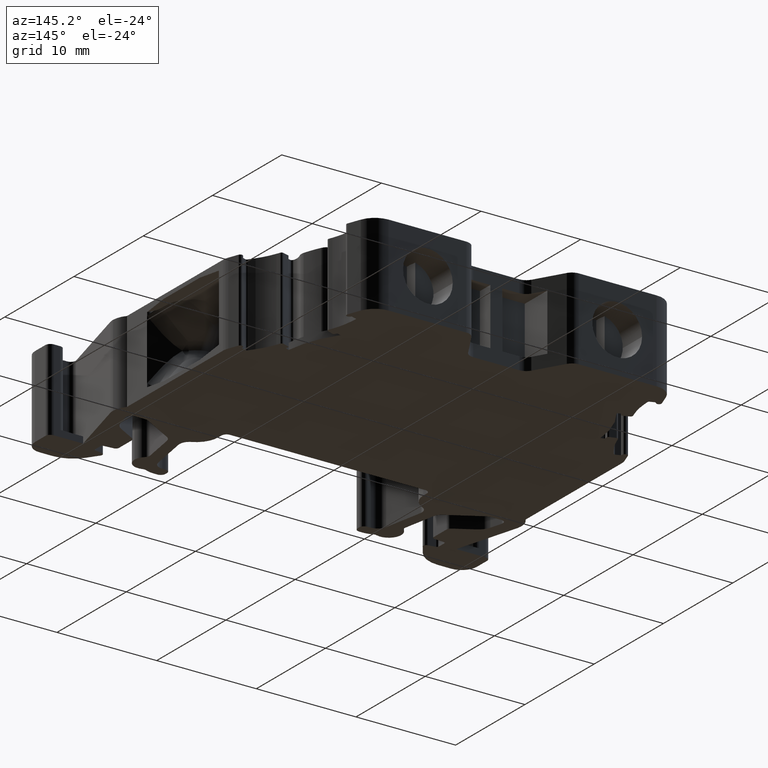
[diagram: clean part render]
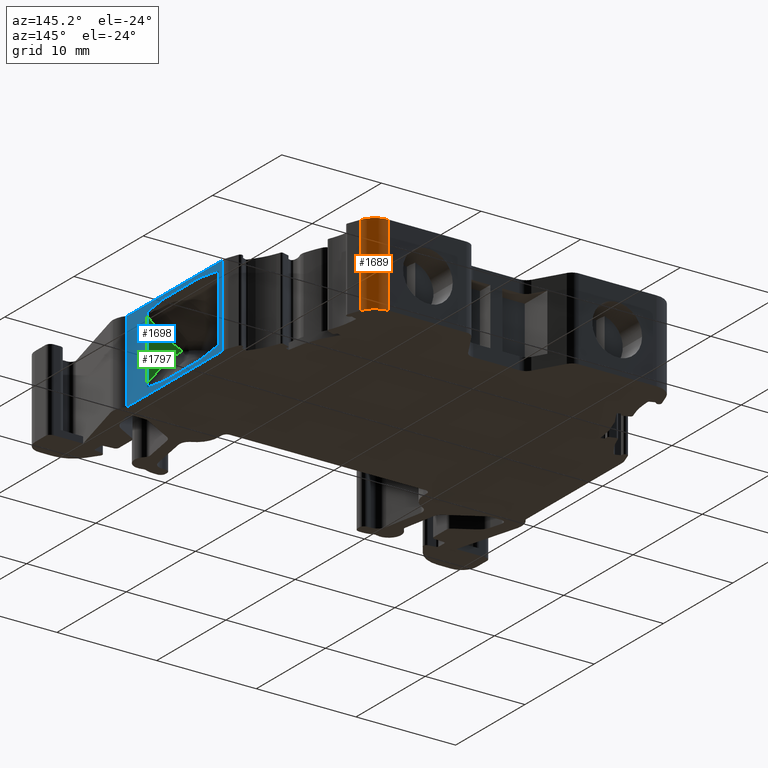
[diagram: same view with three faces highlighted in distinct colors, each labeled with its STEP entity id]
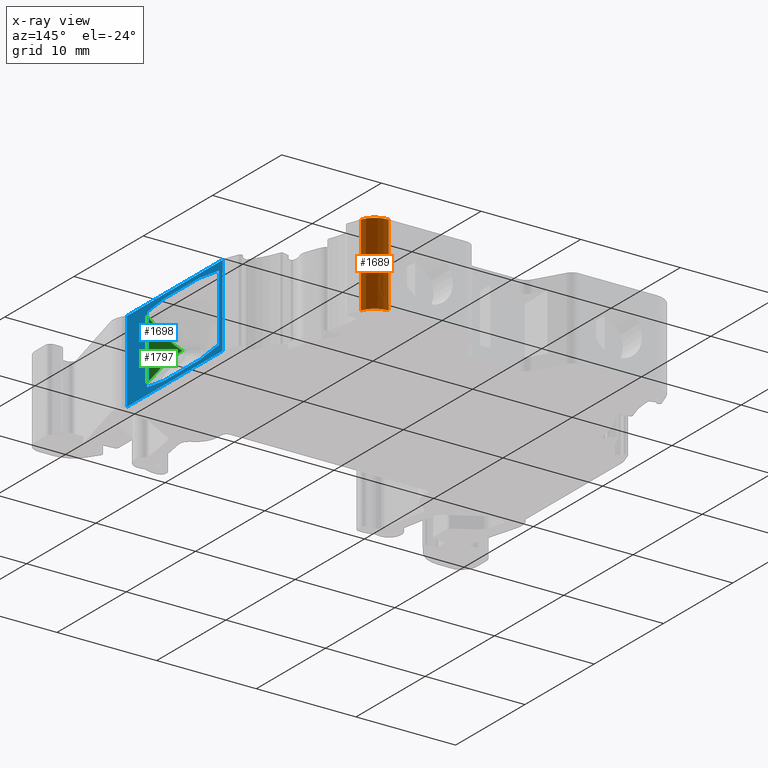
[diagram: x-ray of the same camera — body ghosted, the three highlighted faces saturated]
A machine part, auxiliary view with three faces highlighted in distinct colors.
The next image is the same camera in x-ray (body ghosted, the three faces saturated) — at least one of them is partly hidden behind the body in this view.
Their STEP definitions:

[orange] entity #1689 — the highlighted cylindrical surface (edge-blend (fillet) strip) has radius 2 mm, axis along (-0, 0, 1).
#1362 = EDGE_CURVE ( 'NONE', #11513, #11480, #9027, .T. ) ;
#1553 = EDGE_CURVE ( 'NONE', #11480, #11630, #3475, .T. ) ;
#1601 = EDGE_CURVE ( 'NONE', #11571, #11630, #9281, .T. ) ;
#1616 = EDGE_CURVE ( 'NONE', #11571, #11513, #3703, .T. ) ;
#1689 = ADVANCED_FACE ( 'NONE', ( #2915 ), #4057, .T. ) ;
#2876 = CARTESIAN_POINT ( 'NONE',  ( 1473.620055561186100, 955.4718306111130900, 5.263821926006719400 ) ) ;
#2906 = DIRECTION ( 'NONE',  ( 6.318309496134340800E-016, -0.0000000000000000000, -1.000000000000000000 ) ) ;
#2909 = DIRECTION ( 'NONE',  ( 1.000000000000000000, 0.0000000000000000000, 4.336809095867417200E-016 ) ) ;
#2915 = FACE_OUTER_BOUND ( 'NONE', #7624, .T. ) ;
#3473 = CARTESIAN_POINT ( 'NONE',  ( 1475.499440626847700, 956.1558708337374800, -3.335584383726579700 ) ) ;
#3475 = LINE ( 'NONE', #3473, #9224 ) ;
#3484 = DIRECTION ( 'NONE',  ( 6.318309496134340800E-016, -0.0000000000000000000, -1.000000000000000000 ) ) ;
#3651 = CARTESIAN_POINT ( 'NONE',  ( 1473.620055561186100, 955.4718306111130900, -2.935584425860236800 ) ) ;
#3666 = DIRECTION ( 'NONE',  ( 6.318309496134340800E-016, -0.0000000000000000000, -1.000000000000000000 ) ) ;
#3691 = DIRECTION ( 'NONE',  ( 1.000000000000000000, 0.0000000000000000000, 6.505213643801126300E-016 ) ) ;
#3703 = LINE ( 'NONE', #3727, #9258 ) ;
#3727 = CARTESIAN_POINT ( 'NONE',  ( 1473.620055561186100, 957.4718304239130500, -3.335584383726581100 ) ) ;
#3739 = DIRECTION ( 'NONE',  ( -6.318309496134340800E-016, 0.0000000000000000000, 1.000000000000000000 ) ) ;
#4047 = CARTESIAN_POINT ( 'NONE',  ( 1473.620055561186100, 955.4718306111130900, -3.335584383726581100 ) ) ;
#4050 = DIRECTION ( 'NONE',  ( -6.318309496134340800E-016, 0.0000000000000000000, 1.000000000000000000 ) ) ;
#4057 = CYLINDRICAL_SURFACE ( 'NONE', #10073, 1.999999812799968500 ) ;
#4074 = DIRECTION ( 'NONE',  ( 1.000000000000000000, 0.0000000000000000000, 6.505213643801126300E-016 ) ) ;
#7048 = ORIENTED_EDGE ( 'NONE', *, *, #1362, .T. ) ;
#7065 = ORIENTED_EDGE ( 'NONE', *, *, #1601, .F. ) ;
#7084 = ORIENTED_EDGE ( 'NONE', *, *, #1553, .T. ) ;
#7624 = EDGE_LOOP ( 'NONE', ( #10687, #7048, #7084, #7065 ) ) ;
#8246 = CARTESIAN_POINT ( 'NONE',  ( 1475.499440626847700, 956.1558708337377100, 5.263821926006721200 ) ) ;
#8304 = CARTESIAN_POINT ( 'NONE',  ( 1473.620055561186100, 957.4718304239130500, 5.263821926006720300 ) ) ;
#8371 = CARTESIAN_POINT ( 'NONE',  ( 1473.620055561186100, 957.4718304239127100, -2.935584425860236800 ) ) ;
#8422 = CARTESIAN_POINT ( 'NONE',  ( 1475.499440626847700, 956.1558708337377100, -2.935584425860235900 ) ) ;
#9027 = CIRCLE ( 'NONE', #9051, 1.999999812799968500 ) ;
#9051 = AXIS2_PLACEMENT_3D ( 'NONE', #2876, #2906, #2909 ) ;
#9224 = VECTOR ( 'NONE', #3484, 1000.000000000000000 ) ;
#9258 = VECTOR ( 'NONE', #3739, 1000.000000000000000 ) ;
#9281 = CIRCLE ( 'NONE', #9292, 1.999999812799968500 ) ;
#9292 = AXIS2_PLACEMENT_3D ( 'NONE', #3651, #3666, #3691 ) ;
#10073 = AXIS2_PLACEMENT_3D ( 'NONE', #4047, #4050, #4074 ) ;
#10687 = ORIENTED_EDGE ( 'NONE', *, *, #1616, .T. ) ;
#11480 = VERTEX_POINT ( 'NONE', #8246 ) ;
#11513 = VERTEX_POINT ( 'NONE', #8304 ) ;
#11571 = VERTEX_POINT ( 'NONE', #8371 ) ;
#11630 = VERTEX_POINT ( 'NONE', #8422 ) ;

[blue] entity #1698 — the highlighted planar face has unit normal (1, 0, -0).
#906 = VECTOR ( 'NONE', #6737, 999.9999999999998900 ) ;
#1379 = EDGE_CURVE ( 'NONE', #11484, #11478, #1896, .T. ) ;
#1449 = EDGE_CURVE ( 'NONE', #11020, #11484, #3174, .T. ) ;
#1521 = EDGE_CURVE ( 'NONE', #11020, #11622, #3380, .T. ) ;
#1547 = EDGE_CURVE ( 'NONE', #11478, #11622, #3467, .T. ) ;
#1698 = ADVANCED_FACE ( 'NONE', ( #4043, #4058 ), #4060, .T. ) ;
#1872 = CARTESIAN_POINT ( 'NONE',  ( 1480.178076375666000, 931.0394669076479200, 5.263821926006718500 ) ) ;
#1896 = LINE ( 'NONE', #1872, #9047 ) ;
#1897 = DIRECTION ( 'NONE',  ( -0.0000000000000000000, -1.000000000000000000, -0.0000000000000000000 ) ) ;
#3150 = CARTESIAN_POINT ( 'NONE',  ( 1480.178076375666000, 942.9487708315830300, 2.204237805070091000 ) ) ;
#3174 = LINE ( 'NONE', #3150, #9152 ) ;
#3176 = DIRECTION ( 'NONE',  ( 1.395174419780985900E-015, -0.0000000000000000000, 1.000000000000000000 ) ) ;
#3380 = LINE ( 'NONE', #3384, #9209 ) ;
#3384 = CARTESIAN_POINT ( 'NONE',  ( 1480.178076375666000, 927.8246752415179800, -2.935584425860235900 ) ) ;
#3402 = DIRECTION ( 'NONE',  ( -0.0000000000000000000, -1.000000000000000000, -0.0000000000000000000 ) ) ;
#3467 = LINE ( 'NONE', #3491, #9199 ) ;
#3481 = DIRECTION ( 'NONE',  ( -1.395174419780985900E-015, 0.0000000000000000000, -1.000000000000000000 ) ) ;
#3491 = CARTESIAN_POINT ( 'NONE',  ( 1480.178076375666000, 929.1404900116233400, 2.204237805070091000 ) ) ;
#4043 = FACE_OUTER_BOUND ( 'NONE', #7651, .T. ) ;
#4058 = FACE_BOUND ( 'NONE', #7680, .T. ) ;
#4060 = PLANE ( 'NONE',  #10069 ) ;
#4061 = CARTESIAN_POINT ( 'NONE',  ( 1480.178076375666000, 931.0394669076479200, 2.204237805070091000 ) ) ;
#4062 = DIRECTION ( 'NONE',  ( 1.000000000000000000, 0.0000000000000000000, -1.395174419780985900E-015 ) ) ;
#4067 = DIRECTION ( 'NONE',  ( -1.395174419780985900E-015, 0.0000000000000000000, -1.000000000000000000 ) ) ;
#5072 = CARTESIAN_POINT ( 'NONE',  ( 1480.178076380670300, 932.0577901106863700, -2.226590414722308800 ) ) ;
#5080 = CARTESIAN_POINT ( 'NONE',  ( 1480.178076376522500, 932.0378163073218000, 4.189010121755139000 ) ) ;
#5083 = CARTESIAN_POINT ( 'NONE',  ( 1480.178076375666300, 942.4142093157324800, -2.178186489663006300 ) ) ;
#5086 = CARTESIAN_POINT ( 'NONE',  ( 1480.178076378756000, 939.6634749343501200, -2.540327541162229700 ) ) ;
#5089 = CARTESIAN_POINT ( 'NONE',  ( 1480.178076375665800, 932.0577901088578300, 4.555420783218135500 ) ) ;
#5094 = CARTESIAN_POINT ( 'NONE',  ( 1480.178076375666000, 934.4408601387500500, 4.869157931309111100 ) ) ;
#5099 = CARTESIAN_POINT ( 'NONE',  ( 1480.178076375666900, 942.4142093157331600, 4.507016879928733600 ) ) ;
#5114 = CARTESIAN_POINT ( 'NONE',  ( 1480.178076375666000, 939.6634749343495500, 4.869157931309095100 ) ) ;
#5130 = CARTESIAN_POINT ( 'NONE',  ( 1480.178076376522500, 932.0378163073218000, -1.860179731519219000 ) ) ;
#5176 = CARTESIAN_POINT ( 'NONE',  ( 1480.178076379543400, 934.4408601387490300, -2.540327541162210200 ) ) ;
#5609 = CARTESIAN_POINT ( 'NONE',  ( 1480.178076375666000, 931.0394669076479200, -2.540327541162229700 ) ) ;
#5617 = LINE ( 'NONE', #5609, #7737 ) ;
#5623 = DIRECTION ( 'NONE',  ( -0.0000000000000000000, -1.000000000000000000, -0.0000000000000000000 ) ) ;
#5922 = VERTEX_POINT ( 'NONE', #5080 ) ;
#5926 = VERTEX_POINT ( 'NONE', #5089 ) ;
#5938 = VERTEX_POINT ( 'NONE', #5114 ) ;
#5942 = VERTEX_POINT ( 'NONE', #5099 ) ;
#5945 = VERTEX_POINT ( 'NONE', #5086 ) ;
#5959 = VERTEX_POINT ( 'NONE', #5072 ) ;
#5985 = VERTEX_POINT ( 'NONE', #5083 ) ;
#5999 = VERTEX_POINT ( 'NONE', #5130 ) ;
#6008 = VERTEX_POINT ( 'NONE', #5094 ) ;
#6096 = VERTEX_POINT ( 'NONE', #5176 ) ;
#6111 = CARTESIAN_POINT ( 'NONE',  ( 1480.178076375666000, 942.9487708315830300, -2.935584425860236400 ) ) ;
#6699 = CARTESIAN_POINT ( 'NONE',  ( 1480.178076375666000, 942.4142093157333900, 2.204237805070091000 ) ) ;
#6707 = CARTESIAN_POINT ( 'NONE',  ( 1480.178076376522500, 932.0378163073218000, -1.860179731519219000 ) ) ;
#6708 = CARTESIAN_POINT ( 'NONE',  ( 1480.178076375666700, 932.0378243015313700, -1.982679126773721200 ) ) ;
#6709 = CARTESIAN_POINT ( 'NONE',  ( 1480.178076375665800, 932.0577901088578300, 4.555420783218135500 ) ) ;
#6710 = CARTESIAN_POINT ( 'NONE',  ( 1480.178076375666000, 932.0577901010516400, 4.555420781442142800 ) ) ;
#6714 = CARTESIAN_POINT ( 'NONE',  ( 1480.178076376522500, 932.0378163073218000, 4.189010121755139000 ) ) ;
#6721 = CARTESIAN_POINT ( 'NONE',  ( 1480.178076375666000, 931.0394669076479200, 4.869157931309122700 ) ) ;
#6723 = CARTESIAN_POINT ( 'NONE',  ( 1480.178076380670300, 932.0577901106863700, -2.226590414722308800 ) ) ;
#6725 = CARTESIAN_POINT ( 'NONE',  ( 1480.178076375665300, 932.0378243015325100, 4.311509511051922600 ) ) ;
#6727 = CARTESIAN_POINT ( 'NONE',  ( 1480.178076375665800, 932.0439912076077500, 4.433673167285028200 ) ) ;
#6733 = CARTESIAN_POINT ( 'NONE',  ( 1480.178076375666700, 932.0439912080393000, -2.104842786723229800 ) ) ;
#6737 = DIRECTION ( 'NONE',  ( 0.0000000000000000000, 0.9914448598944033400, 0.1305262034572641500 ) ) ;
#6738 = DIRECTION ( 'NONE',  ( -1.395174419780985900E-015, 0.0000000000000000000, -1.000000000000000000 ) ) ;
#6740 = LINE ( 'NONE', #6721, #9994 ) ;
#6741 = LINE ( 'NONE', #6710, #906 ) ;
#6744 = LINE ( 'NONE', #6699, #11466 ) ;
#6745 = DIRECTION ( 'NONE',  ( 0.0000000000000000000, 1.000000000000000000, 0.0000000000000000000 ) ) ;
#6771 = LINE ( 'NONE', #6795, #7746 ) ;
#6795 = CARTESIAN_POINT ( 'NONE',  ( 1480.178076375666000, 934.4408601387490300, -2.540327541162214200 ) ) ;
#6796 = DIRECTION ( 'NONE',  ( 0.0000000000000000000, -0.9914448608009934800, 0.1305261965710270100 ) ) ;
#6800 = CARTESIAN_POINT ( 'NONE',  ( 1480.178076375666000, 939.6634749343496700, 4.869157931309090700 ) ) ;
#6807 = LINE ( 'NONE', #6814, #7754 ) ;
#6814 = CARTESIAN_POINT ( 'NONE',  ( 1480.178076375666000, 942.4142093157318000, -2.178186489667770100 ) ) ;
#6819 = DIRECTION ( 'NONE',  ( 0.0000000000000000000, -0.9914448613744617500, -0.1305261922151034800 ) ) ;
#6823 = DIRECTION ( 'NONE',  ( 0.0000000000000000000, 0.9914448613778379400, -0.1305261921894595200 ) ) ;
#6839 = LINE ( 'NONE', #6800, #7753 ) ;
#6847 = LINE ( 'NONE', #6855, #7763 ) ;
#6855 = CARTESIAN_POINT ( 'NONE',  ( 1480.178076375666000, 932.0378163069804000, 2.204237805070091000 ) ) ;
#6856 = DIRECTION ( 'NONE',  ( 1.395174419780985900E-015, -0.0000000000000000000, 1.000000000000000000 ) ) ;
#7651 = EDGE_LOOP ( 'NONE', ( #10577, #10614, #10587, #10592 ) ) ;
#7680 = EDGE_LOOP ( 'NONE', ( #10563, #10588, #10604, #10605, #10570, #10565, #10566, #10571, #10596, #10572 ) ) ;
#7737 = VECTOR ( 'NONE', #5623, 1000.000000000000000 ) ;
#7746 = VECTOR ( 'NONE', #6796, 1000.000000000000100 ) ;
#7753 = VECTOR ( 'NONE', #6823, 1000.000000000000000 ) ;
#7754 = VECTOR ( 'NONE', #6819, 1000.000000000000100 ) ;
#7763 = VECTOR ( 'NONE', #6856, 1000.000000000000000 ) ;
#8289 = CARTESIAN_POINT ( 'NONE',  ( 1480.178076375666000, 942.9487708315830300, 5.263821926006717600 ) ) ;
#8315 = CARTESIAN_POINT ( 'NONE',  ( 1480.178076375666000, 929.1404900116228900, 5.263821926006716700 ) ) ;
#8466 = CARTESIAN_POINT ( 'NONE',  ( 1480.178076375666000, 929.1404900116228900, -2.935584425860237700 ) ) ;
#9047 = VECTOR ( 'NONE', #1897, 1000.000000000000000 ) ;
#9152 = VECTOR ( 'NONE', #3176, 1000.000000000000000 ) ;
#9199 = VECTOR ( 'NONE', #3481, 1000.000000000000000 ) ;
#9209 = VECTOR ( 'NONE', #3402, 1000.000000000000000 ) ;
#9994 = VECTOR ( 'NONE', #6745, 1000.000000000000000 ) ;
#10069 = AXIS2_PLACEMENT_3D ( 'NONE', #4061, #4062, #4067 ) ;
#10162 = B_SPLINE_CURVE_WITH_KNOTS ( 'NONE', 3,
 ( #6723, #6733, #6708, #6707 ),
 .UNSPECIFIED., .F., .F.,
 ( 4, 4 ),
 ( 0.0000000000000000000, 0.0003669546818040018800 ),
 .UNSPECIFIED. ) ;
#10163 = B_SPLINE_CURVE_WITH_KNOTS ( 'NONE', 3,
 ( #6714, #6725, #6727, #6709 ),
 .UNSPECIFIED., .F., .F.,
 ( 4, 4 ),
 ( 7.806255641895631900E-018, 0.0003669546640080881100 ),
 .UNSPECIFIED. ) ;
#10563 = ORIENTED_EDGE ( 'NONE', *, *, #11225, .T. ) ;
#10565 = ORIENTED_EDGE ( 'NONE', *, *, #11147, .T. ) ;
#10566 = ORIENTED_EDGE ( 'NONE', *, *, #11145, .T. ) ;
#10570 = ORIENTED_EDGE ( 'NONE', *, *, #11146, .T. ) ;
#10571 = ORIENTED_EDGE ( 'NONE', *, *, #11165, .T. ) ;
#10572 = ORIENTED_EDGE ( 'NONE', *, *, #11174, .T. ) ;
#10577 = ORIENTED_EDGE ( 'NONE', *, *, #1547, .T. ) ;
#10587 = ORIENTED_EDGE ( 'NONE', *, *, #1449, .T. ) ;
#10588 = ORIENTED_EDGE ( 'NONE', *, *, #11156, .T. ) ;
#10592 = ORIENTED_EDGE ( 'NONE', *, *, #1379, .T. ) ;
#10596 = ORIENTED_EDGE ( 'NONE', *, *, #11150, .T. ) ;
#10604 = ORIENTED_EDGE ( 'NONE', *, *, #11144, .T. ) ;
#10605 = ORIENTED_EDGE ( 'NONE', *, *, #11185, .T. ) ;
#10614 = ORIENTED_EDGE ( 'NONE', *, *, #1521, .F. ) ;
#11020 = VERTEX_POINT ( 'NONE', #6111 ) ;
#11144 = EDGE_CURVE ( 'NONE', #5959, #5999, #10162, .T. ) ;
#11145 = EDGE_CURVE ( 'NONE', #6008, #5938, #6740, .T. ) ;
#11146 = EDGE_CURVE ( 'NONE', #5922, #5926, #10163, .T. ) ;
#11147 = EDGE_CURVE ( 'NONE', #5926, #6008, #6741, .T. ) ;
#11150 = EDGE_CURVE ( 'NONE', #5942, #5985, #6744, .T. ) ;
#11156 = EDGE_CURVE ( 'NONE', #6096, #5959, #6771, .T. ) ;
#11165 = EDGE_CURVE ( 'NONE', #5938, #5942, #6839, .T. ) ;
#11174 = EDGE_CURVE ( 'NONE', #5985, #5945, #6807, .T. ) ;
#11185 = EDGE_CURVE ( 'NONE', #5999, #5922, #6847, .T. ) ;
#11225 = EDGE_CURVE ( 'NONE', #5945, #6096, #5617, .T. ) ;
#11466 = VECTOR ( 'NONE', #6738, 1000.000000000000000 ) ;
#11478 = VERTEX_POINT ( 'NONE', #8315 ) ;
#11484 = VERTEX_POINT ( 'NONE', #8289 ) ;
#11622 = VERTEX_POINT ( 'NONE', #8466 ) ;

[green] entity #1797 — the highlighted planar face has unit normal (0.5037, 0.8639, 0).
#1797 = ADVANCED_FACE ( 'NONE', ( #4663 ), #4644, .T. ) ;
#4644 = PLANE ( 'NONE',  #9938 ) ;
#4652 = DIRECTION ( 'NONE',  ( 0.5036525718078699300, 0.8639062952145437600, 3.941284821749209900E-015 ) ) ;
#4663 = FACE_OUTER_BOUND ( 'NONE', #7461, .T. ) ;
#4665 = DIRECTION ( 'NONE',  ( -0.8639062952145437600, 0.5036525718078699300, 0.0000000000000000000 ) ) ;
#4675 = CARTESIAN_POINT ( 'NONE',  ( 1476.537166300820000, 934.1604466568700200, -499997.7489621949500 ) ) ;
#5080 = CARTESIAN_POINT ( 'NONE',  ( 1480.178076376522500, 932.0378163073218000, 4.189010121755139000 ) ) ;
#5130 = CARTESIAN_POINT ( 'NONE',  ( 1480.178076376522500, 932.0378163073218000, -1.860179731519219000 ) ) ;
#5200 = CARTESIAN_POINT ( 'NONE',  ( 1477.656317779549700, 933.5079875584731300, 1.164415195109695500 ) ) ;
#5342 = ORIENTED_EDGE ( 'NONE', *, *, #11219, .T. ) ;
#5359 = ORIENTED_EDGE ( 'NONE', *, *, #11185, .F. ) ;
#5455 = ORIENTED_EDGE ( 'NONE', *, *, #11153, .T. ) ;
#5604 = CARTESIAN_POINT ( 'NONE',  ( 1478.069702188596500, 933.2669867440155300, 0.8760162861562996700 ) ) ;
#5618 = CARTESIAN_POINT ( 'NONE',  ( 1479.062786104188300, 932.6880243370050000, -0.2702207260354208000 ) ) ;
#5621 = CARTESIAN_POINT ( 'NONE',  ( 1479.337015926322900, 932.5281498738251000, -0.6317348847725646800 ) ) ;
#5625 = CARTESIAN_POINT ( 'NONE',  ( 1478.525800049564200, 933.0010842243266300, 0.4140798506379428400 ) ) ;
#5628 = CARTESIAN_POINT ( 'NONE',  ( 1479.101211082707600, 932.6656227879480000, -0.3197519069236216500 ) ) ;
#5629 = CARTESIAN_POINT ( 'NONE',  ( 1479.035493854693600, 932.7039355668737200, -0.2352753742156545600 ) ) ;
#5632 = CARTESIAN_POINT ( 'NONE',  ( 1479.028508325836100, 932.7080080913988200, -0.2263587517348971100 ) ) ;
#5633 = CARTESIAN_POINT ( 'NONE',  ( 1479.178811750103900, 932.6203820298650300, -0.4209279675332169800 ) ) ;
#5636 = CARTESIAN_POINT ( 'NONE',  ( 1479.043667453722500, 932.6991704040376600, -0.2457193478649757300 ) ) ;
#5641 = CARTESIAN_POINT ( 'NONE',  ( 1479.665435644471500, 932.3366830022512200, -1.087167901971563700 ) ) ;
#5642 = CARTESIAN_POINT ( 'NONE',  ( 1479.030049257188700, 932.7071097369789600, -0.2283253066439447600 ) ) ;
#5643 = CARTESIAN_POINT ( 'NONE',  ( 1477.656317779549700, 933.5079875584731300, 1.164415195109695500 ) ) ;
#5922 = VERTEX_POINT ( 'NONE', #5080 ) ;
#5999 = VERTEX_POINT ( 'NONE', #5130 ) ;
#6525 = VERTEX_POINT ( 'NONE', #5200 ) ;
#6717 = CARTESIAN_POINT ( 'NONE',  ( 1477.656317779549700, 933.5079875584731300, 1.164415195109695500 ) ) ;
#6722 = CARTESIAN_POINT ( 'NONE',  ( 1477.862652294418700, 933.3876956823262400, 1.308366202522393000 ) ) ;
#6747 = CARTESIAN_POINT ( 'NONE',  ( 1479.016808908568200, 932.7148287866855300, 2.540298080073392300 ) ) ;
#6762 = CARTESIAN_POINT ( 'NONE',  ( 1479.009014406744200, 932.7193729379564500, 2.530403524308219700 ) ) ;
#6767 = CARTESIAN_POINT ( 'NONE',  ( 1478.808443448821200, 932.8363046924160900, 2.281504760061465700 ) ) ;
#6769 = CARTESIAN_POINT ( 'NONE',  ( 1479.371436143350100, 932.5080830784750100, 2.991783395259518300 ) ) ;
#6770 = CARTESIAN_POINT ( 'NONE',  ( 1480.178076376522500, 932.0378163073218000, 4.189010121755139000 ) ) ;
#6772 = CARTESIAN_POINT ( 'NONE',  ( 1478.915933652082500, 932.7736385009357000, 2.413485254470515400 ) ) ;
#6775 = CARTESIAN_POINT ( 'NONE',  ( 1479.021901793846800, 932.7118596628541800, 2.546774823707131900 ) ) ;
#6777 = CARTESIAN_POINT ( 'NONE',  ( 1478.970124068877100, 932.7420457889284100, 2.481260034323815600 ) ) ;
#6779 = CARTESIAN_POINT ( 'NONE',  ( 1478.997330606065400, 932.7261845288582000, 2.515593557416333500 ) ) ;
#6788 = CARTESIAN_POINT ( 'NONE',  ( 1478.597025563609600, 932.9595601452387000, 2.031820032470920400 ) ) ;
#6789 = CARTESIAN_POINT ( 'NONE',  ( 1479.755924480823500, 932.2839285132503200, 3.538045268328458900 ) ) ;
#6792 = CARTESIAN_POINT ( 'NONE',  ( 1478.188439878433000, 933.1977633303331500, 1.589555621507077600 ) ) ;
#6847 = LINE ( 'NONE', #6855, #7763 ) ;
#6855 = CARTESIAN_POINT ( 'NONE',  ( 1480.178076375666000, 932.0378163069804000, 2.204237805070091000 ) ) ;
#6856 = DIRECTION ( 'NONE',  ( 1.395174419780985900E-015, -0.0000000000000000000, 1.000000000000000000 ) ) ;
#7020 = CARTESIAN_POINT ( 'NONE',  ( 1480.178076376522500, 932.0378163073218000, -1.860179731519219000 ) ) ;
#7031 = CARTESIAN_POINT ( 'NONE',  ( 1479.967529172671900, 932.1605641531965600, -1.535514801787485800 ) ) ;
#7461 = EDGE_LOOP ( 'NONE', ( #5455, #5359, #5342 ) ) ;
#7763 = VECTOR ( 'NONE', #6856, 1000.000000000000000 ) ;
#9938 = AXIS2_PLACEMENT_3D ( 'NONE', #4675, #4652, #4665 ) ;
#10175 = B_SPLINE_CURVE_WITH_KNOTS ( 'NONE', 3,
 ( #6717, #6722, #6792, #6788, #6767, #6772, #6777, #6779, #6762, #6747, #6775, #6769, #6789, #6770 ),
 .UNSPECIFIED., .F., .F.,
 ( 4, 1, 1, 1, 1, 1, 1, 2, 2, 4 ),
 ( 0.0000000000000000000, 0.2500000000008092400, 0.3750000000011988700, 0.4375000000013809500, 0.4687500000014603300, 0.4843750000015000200, 0.4921875000015693000, 0.4960937500015771300, 0.5000000000015849500, 1.000000000000000000 ),
 .UNSPECIFIED. ) ;
#11048 = B_SPLINE_CURVE_WITH_KNOTS ( 'NONE', 3,
 ( #7020, #7031, #5641, #5621, #5633, #5628, #5618, #5636, #5629, #5642, #5632, #5625, #5604, #5643 ),
 .UNSPECIFIED., .F., .F.,
 ( 4, 1, 1, 1, 1, 1, 1, 2, 2, 4 ),
 ( 0.0000000000000000000, 0.2499999999987337400, 0.3749999999980451200, 0.4374999999977007800, 0.4687499999975645000, 0.4843749999974964500, 0.4921874999974469300, 0.4960937499974756300, 0.4999999999975043300, 1.000000000000000000 ),
 .UNSPECIFIED. ) ;
#11153 = EDGE_CURVE ( 'NONE', #6525, #5922, #10175, .T. ) ;
#11185 = EDGE_CURVE ( 'NONE', #5999, #5922, #6847, .T. ) ;
#11219 = EDGE_CURVE ( 'NONE', #5999, #6525, #11048, .T. ) ;